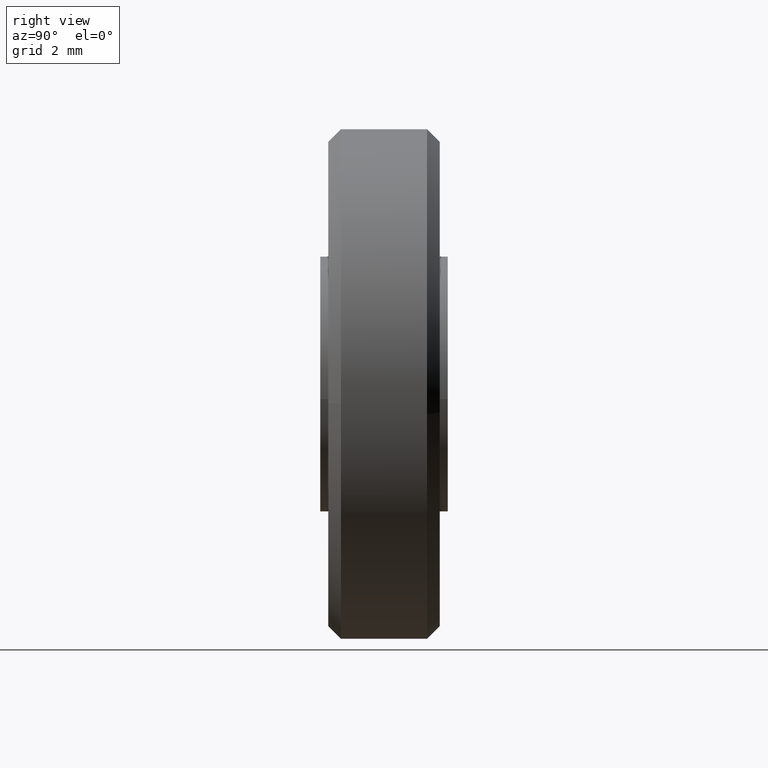
[diagram: clean part render]
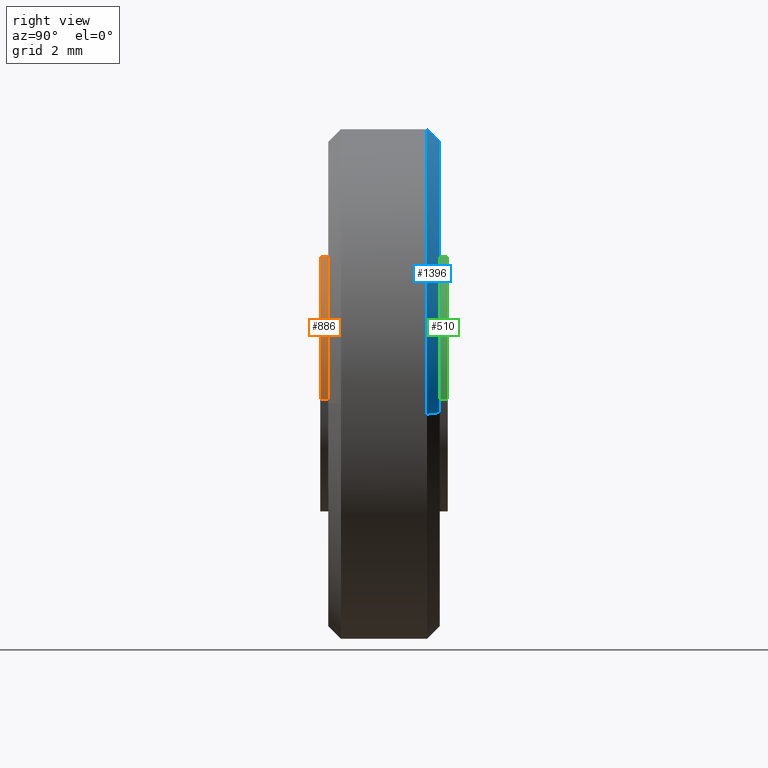
[diagram: same view with three faces highlighted in distinct colors, each labeled with its STEP entity id]
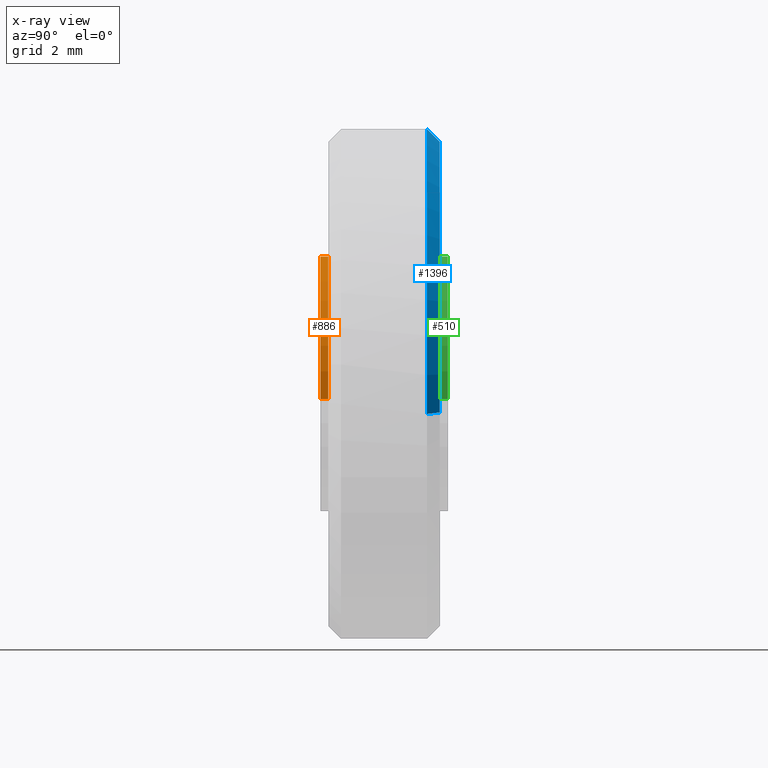
[diagram: x-ray of the same camera — body ghosted, the three highlighted faces saturated]
A machine part, right view with three faces highlighted in distinct colors.
The next image is the same camera in x-ray (body ghosted, the three faces saturated) — at least one of them is partly hidden behind the body in this view.
Their STEP definitions:

[orange] entity #886 — the highlighted face is a freeform B-spline surface patch.
#784=CARTESIAN_POINT('',(3.972038105454666,0.256250000000000,-0.472136938627034));
#785=CARTESIAN_POINT('',(3.985550461794422,0.256250000000000,-0.358458914551911));
#786=CARTESIAN_POINT('',(3.992539193687467,0.256250000000000,-0.244194158139428));
#787=CARTESIAN_POINT('',(4.236733351826894,0.256250000000000,3.748345035548039));
#788=CARTESIAN_POINT('',(0.244194158139428,0.256250000000000,3.992539193687467));
#789=CARTESIAN_POINT('',(-3.748345035548039,0.256250000000000,4.236733351826894));
#790=CARTESIAN_POINT('',(-3.992539193687467,0.256250000000000,0.244194158139428));
#791=CARTESIAN_POINT('',(3.972038105454666,-0.006406250000001,-0.472136938627034));
#792=CARTESIAN_POINT('',(3.985550461794422,-0.006406250000001,-0.358458914551911));
#793=CARTESIAN_POINT('',(3.992539193687467,-0.006406250000001,-0.244194158139428));
#794=CARTESIAN_POINT('',(4.236733351826894,-0.006406250000001,3.748345035548039));
#795=CARTESIAN_POINT('',(0.244194158139428,-0.006406250000001,3.992539193687467));
#796=CARTESIAN_POINT('',(-3.748345035548039,-0.006406250000001,4.236733351826894));
#797=CARTESIAN_POINT('',(-3.992539193687467,-0.006406250000001,0.244194158139428));
#805=(BOUNDED_SURFACE()B_SPLINE_SURFACE(2,1,((#784,#791),(#785,#792),(#786,#793),(#787,#794),(#788,#795),(#789,#796),(#790,#797)),.UNSPECIFIED.,.F.,.F.,.U.)B_SPLINE_SURFACE_WITH_KNOTS((3,2,2,3),(2,2),(0.0,0.265096679918781,6.892513677888299,13.519930675857820),(0.0,0.262656250000001),.UNSPECIFIED.)GEOMETRIC_REPRESENTATION_ITEM()RATIONAL_B_SPLINE_SURFACE(((0.977505800795127,0.977505800795127),(0.988284271247462,0.988284271247462),(1.0,1.0),(0.707106781186548,0.707106781186548),(1.0,1.0),(0.707106781186548,0.707106781186548),(1.0,1.0)))REPRESENTATION_ITEM('')SURFACE());
#806=CARTESIAN_POINT('',(3.972038733888544,-3.446847E-014,-0.472131651619270));
#807=VERTEX_POINT('',#806);
#808=CARTESIAN_POINT('',(0.0,-7.347638E-016,4.0));
#809=VERTEX_POINT('',#808);
#810=CARTESIAN_POINT('',(3.972038733888545,-3.446847E-014,-0.472131651619270));
#811=CARTESIAN_POINT('',(4.000000000000001,-7.347638E-016,-0.236893807157501));
#812=CARTESIAN_POINT('',(4.0,-7.347638E-016,-1.224606E-016));
#813=CARTESIAN_POINT('',(4.000000000000000,-7.347638E-016,4.000000000000000));
#814=CARTESIAN_POINT('',(0.0,-7.347638E-016,4.0));
#822=(BOUNDED_CURVE()B_SPLINE_CURVE(2,(#810,#811,#812,#813,#814),.UNSPECIFIED.,.F.,.U.)B_SPLINE_CURVE_WITH_KNOTS((3,2,3),(0.229562698468562,0.250000000000000,0.500000000000000),.UNSPECIFIED.)CURVE()GEOMETRIC_REPRESENTATION_ITEM()RATIONAL_B_SPLINE_CURVE((0.956027195105285,0.976056211882384,1.0,0.707106781186548,1.0))REPRESENTATION_ITEM(''));
#823=EDGE_CURVE('',#807,#809,#822,.T.);
#824=ORIENTED_EDGE('',*,*,#823,.F.);
#825=CARTESIAN_POINT('',(3.972038726134540,0.250000000000000,-0.472131716854361));
#826=VERTEX_POINT('',#825);
#827=CARTESIAN_POINT('',(3.972038726134540,0.250000000000000,-0.472131716854361));
#828=CARTESIAN_POINT('',(3.972038733888544,-3.446847E-014,-0.472131651619270));
#829=QUASI_UNIFORM_CURVE('',1,(#827,#828),.UNSPECIFIED.,.F.,.U.);
#830=EDGE_CURVE('',#826,#807,#829,.T.);
#831=ORIENTED_EDGE('',*,*,#830,.F.);
#832=CARTESIAN_POINT('',(0.0,0.250000000000000,4.0));
#833=VERTEX_POINT('',#832);
#834=CARTESIAN_POINT('',(3.972038726134540,0.250000000000000,-0.472131716854361));
#835=CARTESIAN_POINT('',(4.0,0.250000000000000,-0.236893840119862));
#836=CARTESIAN_POINT('',(4.0,0.250000000000000,-1.224606E-016));
#837=CARTESIAN_POINT('',(4.000000000000000,0.250000000000000,4.000000000000000));
#838=CARTESIAN_POINT('',(0.0,0.250000000000000,4.0));
#846=(BOUNDED_CURVE()B_SPLINE_CURVE(2,(#834,#835,#836,#837,#838),.UNSPECIFIED.,.F.,.U.)B_SPLINE_CURVE_WITH_KNOTS((3,2,3),(0.229562695692923,0.250000000000000,0.500000000000000),.UNSPECIFIED.)CURVE()GEOMETRIC_REPRESENTATION_ITEM()RATIONAL_B_SPLINE_CURVE((0.956027189664907,0.976056208630520,1.0,0.707106781186548,1.0))REPRESENTATION_ITEM(''));
#847=EDGE_CURVE('',#826,#833,#846,.T.);
#848=ORIENTED_EDGE('',*,*,#847,.T.);
#849=CARTESIAN_POINT('',(-3.992539312313356,0.250000000000000,0.244192218607837));
#850=VERTEX_POINT('',#849);
#851=CARTESIAN_POINT('',(0.0,0.250000000000000,4.0));
#852=CARTESIAN_POINT('',(-3.762826098977596,0.250000000000000,4.0));
#853=CARTESIAN_POINT('',(-3.992539312313355,0.250000000000000,0.244192218607837));
#861=(BOUNDED_CURVE()B_SPLINE_CURVE(2,(#851,#852,#853),.UNSPECIFIED.,.F.,.U.)B_SPLINE_CURVE_WITH_KNOTS((3,3),(0.500000000000000,0.739333046063305),.UNSPECIFIED.)CURVE()GEOMETRIC_REPRESENTATION_ITEM()RATIONAL_B_SPLINE_CURVE((1.0,0.719603895080362,0.976072221318347))REPRESENTATION_ITEM(''));
#862=EDGE_CURVE('',#833,#850,#861,.T.);
#863=ORIENTED_EDGE('',*,*,#862,.T.);
#864=CARTESIAN_POINT('',(-3.992539313793539,1.189898E-013,0.244192194406656));
#865=VERTEX_POINT('',#864);
#866=CARTESIAN_POINT('',(-3.992539312313356,0.250000000000000,0.244192218607837));
#867=CARTESIAN_POINT('',(-3.992539313793539,1.189898E-013,0.244192194406656));
#868=QUASI_UNIFORM_CURVE('',1,(#866,#867),.UNSPECIFIED.,.F.,.U.);
#869=EDGE_CURVE('',#850,#865,#868,.T.);
#870=ORIENTED_EDGE('',*,*,#869,.T.);
#871=CARTESIAN_POINT('',(0.0,-7.347638E-016,4.0));
#872=CARTESIAN_POINT('',(-3.762826121828970,-7.347638E-016,4.000000000000001));
#873=CARTESIAN_POINT('',(-3.992539313793539,1.189898E-013,0.244192194406656));
#881=(BOUNDED_CURVE()B_SPLINE_CURVE(2,(#871,#872,#873),.UNSPECIFIED.,.F.,.U.)B_SPLINE_CURVE_WITH_KNOTS((3,3),(0.500000000000000,0.739333047109215),.UNSPECIFIED.)CURVE()GEOMETRIC_REPRESENTATION_ITEM()RATIONAL_B_SPLINE_CURVE((1.0,0.719603893855002,0.976072223559933))REPRESENTATION_ITEM(''));
#882=EDGE_CURVE('',#809,#865,#881,.T.);
#883=ORIENTED_EDGE('',*,*,#882,.F.);
#884=EDGE_LOOP('',(#824,#831,#848,#863,#870,#883));
#885=FACE_OUTER_BOUND('',#884,.T.);
#886=ADVANCED_FACE('',(#885),#805,.T.);

[blue] entity #1396 — the highlighted face is a freeform B-spline surface patch.
#1200=CARTESIAN_POINT('',(2.812941999224945,3.349999999999995,7.489149304760366));
#1201=VERTEX_POINT('',#1200);
#1202=CARTESIAN_POINT('',(0.0,3.350000000000000,8.0));
#1203=VERTEX_POINT('',#1202);
#1204=CARTESIAN_POINT('',(2.812941999224944,3.349999999999996,7.489149304760366));
#1205=CARTESIAN_POINT('',(1.452858097693186,3.350000000000000,8.0));
#1206=CARTESIAN_POINT('',(0.0,3.350000000000000,8.0));
#1214=(BOUNDED_CURVE()B_SPLINE_CURVE(2,(#1204,#1205,#1206),.UNSPECIFIED.,.F.,.U.)B_SPLINE_CURVE_WITH_KNOTS((3,3),(0.440284208775499,0.500000000000000),.UNSPECIFIED.)CURVE()GEOMETRIC_REPRESENTATION_ITEM()RATIONAL_B_SPLINE_CURVE((0.893499600987734,0.930038598777055,1.0))REPRESENTATION_ITEM(''));
#1215=EDGE_CURVE('',#1201,#1203,#1214,.T.);
#1217=CARTESIAN_POINT('',(-7.985078387375440,3.349999999998263,0.488388316285977));
#1218=VERTEX_POINT('',#1217);
#1219=CARTESIAN_POINT('',(0.0,3.350000000000000,8.0));
#1220=CARTESIAN_POINT('',(-7.525648535218923,3.350000000000001,8.0));
#1221=CARTESIAN_POINT('',(-7.985078387375440,3.349999999998263,0.488388316285977));
#1229=(BOUNDED_CURVE()B_SPLINE_CURVE(2,(#1219,#1220,#1221),.UNSPECIFIED.,.F.,.U.)B_SPLINE_CURVE_WITH_KNOTS((3,3),(0.500000000000000,0.739332962241359),.UNSPECIFIED.)CURVE()GEOMETRIC_REPRESENTATION_ITEM()RATIONAL_B_SPLINE_CURVE((1.0,0.719603993283880,0.976072041671895))REPRESENTATION_ITEM(''));
#1230=EDGE_CURVE('',#1203,#1218,#1229,.T.);
#1270=CARTESIAN_POINT('',(7.944076210909340,3.349999999999953,-0.944273877254476));
#1271=VERTEX_POINT('',#1270);
#1272=CARTESIAN_POINT('',(7.944076210909340,3.349999999999953,-0.944273877254476));
#1273=CARTESIAN_POINT('',(8.0,3.350000000000000,-0.473792957215687));
#1274=CARTESIAN_POINT('',(8.0,3.350000000000000,-1.224606E-016));
#1275=CARTESIAN_POINT('',(8.0,3.350000000000000,5.540878184899050));
#1276=CARTESIAN_POINT('',(2.812941999224944,3.349999999999996,7.489149304760366));
#1284=(BOUNDED_CURVE()B_SPLINE_CURVE(2,(#1272,#1273,#1274,#1275,#1276),.UNSPECIFIED.,.F.,.U.)B_SPLINE_CURVE_WITH_KNOTS((3,2,3),(0.229562473515627,0.250000000000000,0.440284208775499),.UNSPECIFIED.)CURVE()GEOMETRIC_REPRESENTATION_ITEM()RATIONAL_B_SPLINE_CURVE((0.956026754187852,0.976055948333627,1.0,0.777068182409492,0.893499600987734))REPRESENTATION_ITEM(''));
#1285=EDGE_CURVE('',#1271,#1201,#1284,.T.);
#1325=CARTESIAN_POINT('',(7.536942305100228,3.760000000000000,-0.895879841044797));
#1326=CARTESIAN_POINT('',(7.562582001254917,3.760000000000000,-0.680175790362251));
#1327=CARTESIAN_POINT('',(7.575843120021968,3.760000000000001,-0.463358415069565));
#1328=CARTESIAN_POINT('',(8.039201535091532,3.760000000000002,7.112484704952403));
#1329=CARTESIAN_POINT('',(0.463358415069564,3.760000000000001,7.575843120021968));
#1330=CARTESIAN_POINT('',(-7.112484704952403,3.760000000000002,8.039201535091532));
#1331=CARTESIAN_POINT('',(-7.575843120021968,3.760000000000001,0.463358415069564));
#1332=CARTESIAN_POINT('',(7.954254558554578,3.339750000000000,-0.945483728159302));
#1333=CARTESIAN_POINT('',(7.981313896647214,3.339749999999999,-0.717836380072363));
#1334=CARTESIAN_POINT('',(7.995309269058778,3.339750000000000,-0.489014063809090));
#1335=CARTESIAN_POINT('',(8.484323332867866,3.339750000000000,7.506295205249689));
#1336=CARTESIAN_POINT('',(0.489014063809089,3.339750000000000,7.995309269058778));
#1337=CARTESIAN_POINT('',(-7.506295205249689,3.339750000000000,8.484323332867866));
#1338=CARTESIAN_POINT('',(-7.995309269058778,3.339750000000000,0.489014063809089));
#1346=(BOUNDED_SURFACE()B_SPLINE_SURFACE(2,1,((#1325,#1332),(#1326,#1333),(#1327,#1334),(#1328,#1335),(#1329,#1336),(#1330,#1337),(#1331,#1338)),.UNSPECIFIED.,.F.,.F.,.U.)B_SPLINE_SURFACE_WITH_KNOTS((3,2,2,3),(2,2),(0.0,0.530872670079856,13.802689422076231,27.074506174072599),(0.0,1.0),.UNSPECIFIED.)GEOMETRIC_REPRESENTATION_ITEM()RATIONAL_B_SPLINE_SURFACE(((0.977505800795127,0.977505800795127),(0.988284271247462,0.988284271247462),(1.0,1.0),(0.707106781186548,0.707106781186548),(1.0,1.0),(0.707106781186548,0.707106781186548),(1.0,1.0)))REPRESENTATION_ITEM('')SURFACE());
#1347=ORIENTED_EDGE('',*,*,#1285,.F.);
#1348=CARTESIAN_POINT('',(7.546872400363963,3.749999999998501,-0.897060183403245));
#1349=VERTEX_POINT('',#1348);
#1350=CARTESIAN_POINT('',(7.546872400363963,3.749999999998501,-0.897060183403245));
#1351=CARTESIAN_POINT('',(7.944076210909340,3.349999999999953,-0.944273877254476));
#1352=QUASI_UNIFORM_CURVE('',1,(#1350,#1351),.UNSPECIFIED.,.F.,.U.);
#1353=EDGE_CURVE('',#1349,#1271,#1352,.T.);
#1354=ORIENTED_EDGE('',*,*,#1353,.F.);
#1355=CARTESIAN_POINT('',(0.0,3.750000000000000,7.600000000000000));
#1356=VERTEX_POINT('',#1355);
#1357=CARTESIAN_POINT('',(7.546872400363963,3.749999999998500,-0.897060183403245));
#1358=CARTESIAN_POINT('',(7.600000000000000,3.750000000000000,-0.450103309366344));
#1359=CARTESIAN_POINT('',(7.600000000000000,3.750000000000000,-1.224606E-016));
#1360=CARTESIAN_POINT('',(7.600000000000000,3.750000000000000,7.600000000000000));
#1361=CARTESIAN_POINT('',(0.0,3.750000000000000,7.600000000000000));
#1369=(BOUNDED_CURVE()B_SPLINE_CURVE(2,(#1357,#1358,#1359,#1360,#1361),.UNSPECIFIED.,.F.,.U.)B_SPLINE_CURVE_WITH_KNOTS((3,2,3),(0.229562473515120,0.250000000000000,0.500000000000000),.UNSPECIFIED.)CURVE()GEOMETRIC_REPRESENTATION_ITEM()RATIONAL_B_SPLINE_CURVE((0.956026754186858,0.976055948333033,1.0,0.707106781186547,1.0))REPRESENTATION_ITEM(''));
#1370=EDGE_CURVE('',#1349,#1356,#1369,.T.);
#1371=ORIENTED_EDGE('',*,*,#1370,.T.);
#1372=CARTESIAN_POINT('',(-7.585824468006442,3.749999999999528,0.463968900468509));
#1373=VERTEX_POINT('',#1372);
#1374=CARTESIAN_POINT('',(0.0,3.750000000000000,7.600000000000000));
#1375=CARTESIAN_POINT('',(-7.149366108476504,3.749999999999999,7.600000000000000));
#1376=CARTESIAN_POINT('',(-7.585824468006442,3.749999999999528,0.463968900468509));
#1384=(BOUNDED_CURVE()B_SPLINE_CURVE(2,(#1374,#1375,#1376),.UNSPECIFIED.,.F.,.U.)B_SPLINE_CURVE_WITH_KNOTS((3,3),(0.500000000000000,0.739332962241805),.UNSPECIFIED.)CURVE()GEOMETRIC_REPRESENTATION_ITEM()RATIONAL_B_SPLINE_CURVE((1.0,0.719603993283357,0.976072041672852))REPRESENTATION_ITEM(''));
#1385=EDGE_CURVE('',#1356,#1373,#1384,.T.);
#1386=ORIENTED_EDGE('',*,*,#1385,.T.);
#1387=CARTESIAN_POINT('',(-7.585824468006442,3.749999999999528,0.463968900468509));
#1388=CARTESIAN_POINT('',(-7.985078387375440,3.349999999998263,0.488388316285977));
#1389=QUASI_UNIFORM_CURVE('',1,(#1387,#1388),.UNSPECIFIED.,.F.,.U.);
#1390=EDGE_CURVE('',#1373,#1218,#1389,.T.);
#1391=ORIENTED_EDGE('',*,*,#1390,.T.);
#1392=ORIENTED_EDGE('',*,*,#1230,.F.);
#1393=ORIENTED_EDGE('',*,*,#1215,.F.);
#1394=EDGE_LOOP('',(#1347,#1354,#1371,#1386,#1391,#1392,#1393));
#1395=FACE_OUTER_BOUND('',#1394,.T.);
#1396=ADVANCED_FACE('',(#1395),#1346,.T.);

[green] entity #510 — the highlighted face is a freeform B-spline surface patch.
#408=CARTESIAN_POINT('',(3.972038105454666,4.006250000000001,-0.472136938627034));
#409=CARTESIAN_POINT('',(3.985550461794422,4.006250000000000,-0.358458914551911));
#410=CARTESIAN_POINT('',(3.992539193687467,4.006250000000000,-0.244194158139428));
#411=CARTESIAN_POINT('',(4.236733351826894,4.006250000000000,3.748345035548039));
#412=CARTESIAN_POINT('',(0.244194158139428,4.006250000000000,3.992539193687467));
#413=CARTESIAN_POINT('',(-3.748345035548039,4.006250000000000,4.236733351826894));
#414=CARTESIAN_POINT('',(-3.992539193687467,4.006250000000000,0.244194158139428));
#415=CARTESIAN_POINT('',(3.972038105454666,3.743593750000000,-0.472136938627034));
#416=CARTESIAN_POINT('',(3.985550461794422,3.743593749999999,-0.358458914551911));
#417=CARTESIAN_POINT('',(3.992539193687467,3.743593750000000,-0.244194158139428));
#418=CARTESIAN_POINT('',(4.236733351826894,3.743593750000000,3.748345035548039));
#419=CARTESIAN_POINT('',(0.244194158139428,3.743593750000000,3.992539193687467));
#420=CARTESIAN_POINT('',(-3.748345035548039,3.743593750000000,4.236733351826894));
#421=CARTESIAN_POINT('',(-3.992539193687467,3.743593750000000,0.244194158139428));
#429=(BOUNDED_SURFACE()B_SPLINE_SURFACE(2,1,((#408,#415),(#409,#416),(#410,#417),(#411,#418),(#412,#419),(#413,#420),(#414,#421)),.UNSPECIFIED.,.F.,.F.,.U.)B_SPLINE_SURFACE_WITH_KNOTS((3,2,2,3),(2,2),(0.0,0.265096679918781,6.892513677888299,13.519930675857820),(0.0,0.262656250000001),.UNSPECIFIED.)GEOMETRIC_REPRESENTATION_ITEM()RATIONAL_B_SPLINE_SURFACE(((0.977505800795127,0.977505800795127),(0.988284271247462,0.988284271247462),(1.0,1.0),(0.707106781186548,0.707106781186548),(1.0,1.0),(0.707106781186548,0.707106781186548),(1.0,1.0)))REPRESENTATION_ITEM('')SURFACE());
#430=CARTESIAN_POINT('',(3.972038733704035,4.000000000000034,-0.472131653171562));
#431=VERTEX_POINT('',#430);
#432=CARTESIAN_POINT('',(0.0,4.0,4.0));
#433=VERTEX_POINT('',#432);
#434=CARTESIAN_POINT('',(3.972038733704036,4.000000000000035,-0.472131653171562));
#435=CARTESIAN_POINT('',(4.000000000000001,4.000000000000001,-0.236893807941852));
#436=CARTESIAN_POINT('',(4.0,4.0,-1.224606E-016));
#437=CARTESIAN_POINT('',(4.000000000000000,4.000000000000000,4.000000000000000));
#438=CARTESIAN_POINT('',(0.0,4.0,4.0));
#446=(BOUNDED_CURVE()B_SPLINE_CURVE(2,(#434,#435,#436,#437,#438),.UNSPECIFIED.,.F.,.U.)B_SPLINE_CURVE_WITH_KNOTS((3,2,3),(0.229562698402515,0.250000000000000,0.500000000000000),.UNSPECIFIED.)CURVE()GEOMETRIC_REPRESENTATION_ITEM()RATIONAL_B_SPLINE_CURVE((0.956027194975829,0.976056211805005,1.0,0.707106781186548,1.0))REPRESENTATION_ITEM(''));
#447=EDGE_CURVE('',#431,#433,#446,.T.);
#448=ORIENTED_EDGE('',*,*,#447,.T.);
#449=CARTESIAN_POINT('',(-3.992539313758318,3.999999999999880,0.244192194982532));
#450=VERTEX_POINT('',#449);
#451=CARTESIAN_POINT('',(0.0,4.0,4.0));
#452=CARTESIAN_POINT('',(-3.762826121285214,4.000000000000001,4.000000000000001));
#453=CARTESIAN_POINT('',(-3.992539313758317,3.999999999999880,0.244192194982532));
#461=(BOUNDED_CURVE()B_SPLINE_CURVE(2,(#451,#452,#453),.UNSPECIFIED.,.F.,.U.)B_SPLINE_CURVE_WITH_KNOTS((3,3),(0.500000000000000,0.739333047084327),.UNSPECIFIED.)CURVE()GEOMETRIC_REPRESENTATION_ITEM()RATIONAL_B_SPLINE_CURVE((1.0,0.719603893884160,0.976072223506594))REPRESENTATION_ITEM(''));
#462=EDGE_CURVE('',#433,#450,#461,.T.);
#463=ORIENTED_EDGE('',*,*,#462,.T.);
#464=CARTESIAN_POINT('',(-3.992539312313356,3.750000000000000,0.244192218607837));
#465=VERTEX_POINT('',#464);
#466=CARTESIAN_POINT('',(-3.992539313758318,3.999999999999880,0.244192194982532));
#467=CARTESIAN_POINT('',(-3.992539312313356,3.750000000000000,0.244192218607837));
#468=QUASI_UNIFORM_CURVE('',1,(#466,#467),.UNSPECIFIED.,.F.,.U.);
#469=EDGE_CURVE('',#450,#465,#468,.T.);
#470=ORIENTED_EDGE('',*,*,#469,.T.);
#471=CARTESIAN_POINT('',(0.0,3.750000000000000,4.0));
#472=VERTEX_POINT('',#471);
#473=CARTESIAN_POINT('',(0.0,3.750000000000000,4.0));
#474=CARTESIAN_POINT('',(-3.762826098977596,3.750000000000000,4.0));
#475=CARTESIAN_POINT('',(-3.992539312313355,3.750000000000000,0.244192218607837));
#483=(BOUNDED_CURVE()B_SPLINE_CURVE(2,(#473,#474,#475),.UNSPECIFIED.,.F.,.U.)B_SPLINE_CURVE_WITH_KNOTS((3,3),(0.500000000000000,0.739333046063305),.UNSPECIFIED.)CURVE()GEOMETRIC_REPRESENTATION_ITEM()RATIONAL_B_SPLINE_CURVE((1.0,0.719603895080362,0.976072221318347))REPRESENTATION_ITEM(''));
#484=EDGE_CURVE('',#472,#465,#483,.T.);
#485=ORIENTED_EDGE('',*,*,#484,.F.);
#486=CARTESIAN_POINT('',(3.972038726134540,3.750000000000000,-0.472131716854361));
#487=VERTEX_POINT('',#486);
#488=CARTESIAN_POINT('',(3.972038726134540,3.750000000000000,-0.472131716854361));
#489=CARTESIAN_POINT('',(4.0,3.750000000000000,-0.236893840119862));
#490=CARTESIAN_POINT('',(4.0,3.750000000000000,-1.224606E-016));
#491=CARTESIAN_POINT('',(4.000000000000000,3.749999999999999,4.000000000000000));
#492=CARTESIAN_POINT('',(0.0,3.750000000000000,4.0));
#500=(BOUNDED_CURVE()B_SPLINE_CURVE(2,(#488,#489,#490,#491,#492),.UNSPECIFIED.,.F.,.U.)B_SPLINE_CURVE_WITH_KNOTS((3,2,3),(0.229562695692923,0.250000000000000,0.500000000000000),.UNSPECIFIED.)CURVE()GEOMETRIC_REPRESENTATION_ITEM()RATIONAL_B_SPLINE_CURVE((0.956027189664907,0.976056208630520,1.0,0.707106781186548,1.0))REPRESENTATION_ITEM(''));
#501=EDGE_CURVE('',#487,#472,#500,.T.);
#502=ORIENTED_EDGE('',*,*,#501,.F.);
#503=CARTESIAN_POINT('',(3.972038733704035,4.000000000000034,-0.472131653171562));
#504=CARTESIAN_POINT('',(3.972038726134540,3.750000000000000,-0.472131716854361));
#505=QUASI_UNIFORM_CURVE('',1,(#503,#504),.UNSPECIFIED.,.F.,.U.);
#506=EDGE_CURVE('',#431,#487,#505,.T.);
#507=ORIENTED_EDGE('',*,*,#506,.F.);
#508=EDGE_LOOP('',(#448,#463,#470,#485,#502,#507));
#509=FACE_OUTER_BOUND('',#508,.T.);
#510=ADVANCED_FACE('',(#509),#429,.T.);